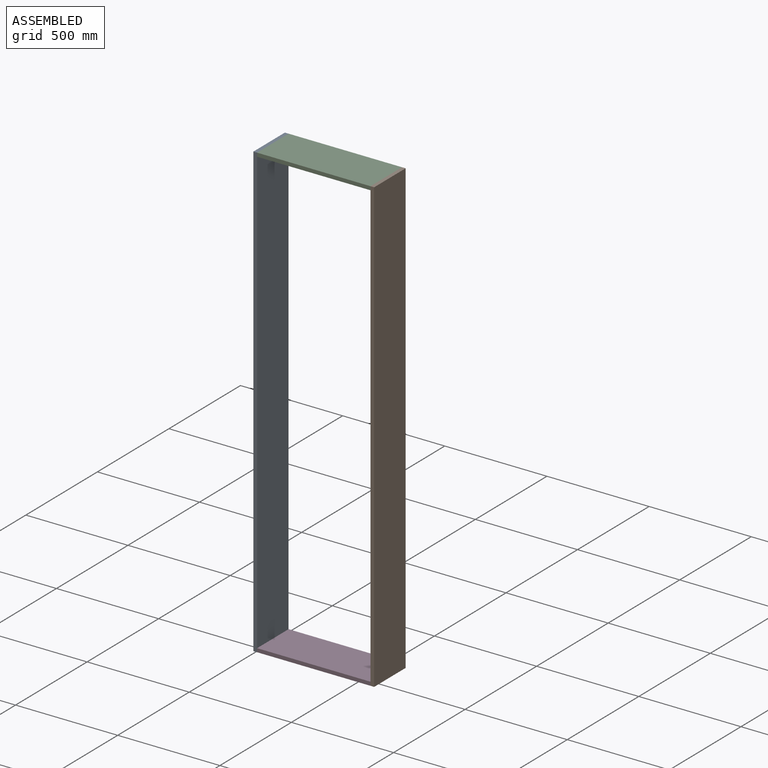
[diagram: assembled view]
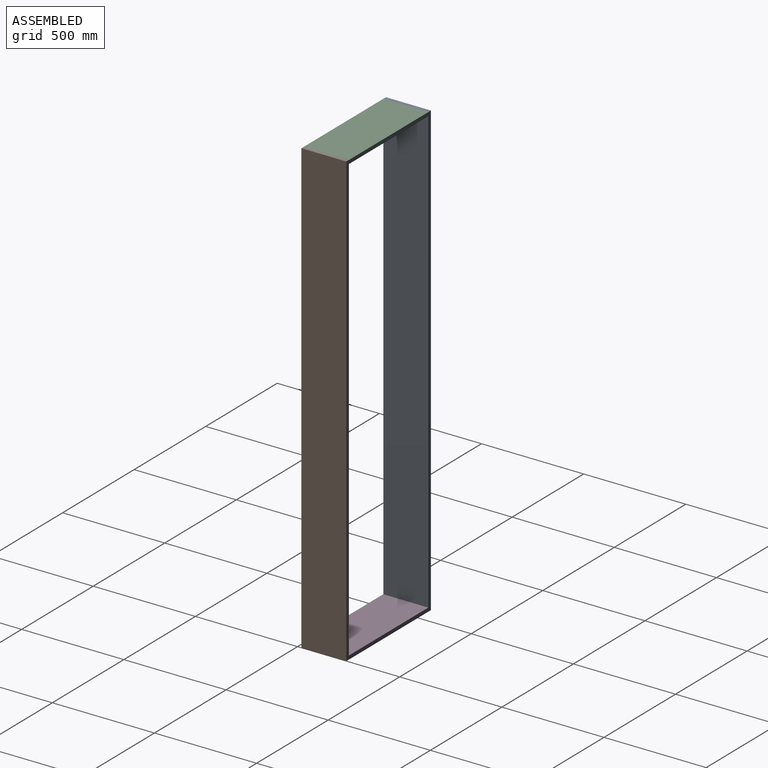
[diagram: assembled view, second angle]
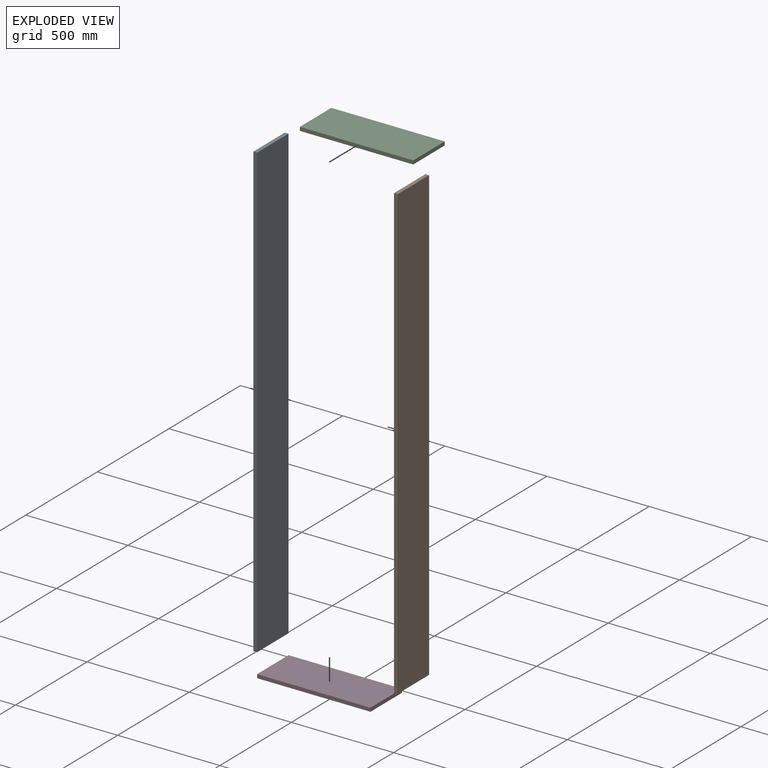
[diagram: exploded view]
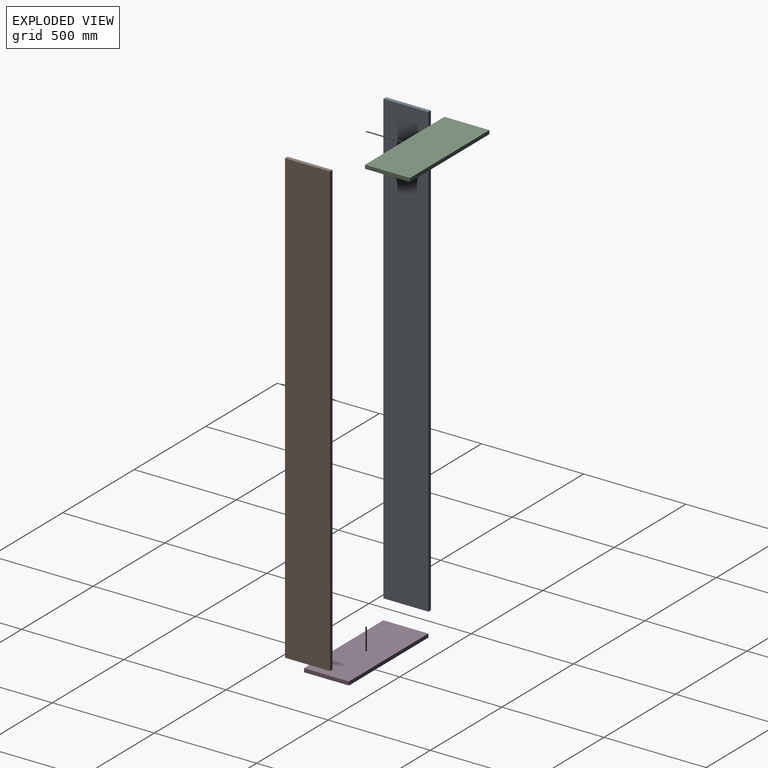
[diagram: exploded view, second angle]
ASSEMBLY  parts=4 mates=9
PART A: 6 faces, bbox 18x220x2210 mm
  f0: plane 2210x18mm, normal (0,-1,0), area 39780mm2, adj f1,f3,f4,f5
  f1: plane 220x18mm, normal (0,0,-1), area 3960mm2, adj f0,f2,f4,f5
  f2: plane 2210x18mm, normal (0,1,0), area 39780mm2, adj f1,f3,f4,f5
  f3: plane 220x18mm, normal (0,0,1), area 3960mm2, adj f0,f2,f4,f5
  f4: plane 2210x220mm, normal (1,0,0), area 486200mm2, adj f0,f1,f2,f3
  f5: plane 2210x220mm, normal (-1,0,0), area 486200mm2, adj f0,f1,f2,f3
PART B: same geometry as A
PART C: 6 faces, bbox 555x220x18 mm
  f0: plane 220x18mm, normal (-1,0,0), area 3960mm2, adj f1,f3,f4,f5
  f1: plane 555x18mm, normal (0,-1,0), area 9990mm2, adj f0,f2,f4,f5
  f2: plane 220x18mm, normal (1,0,0), area 3960mm2, adj f1,f3,f4,f5
  f3: plane 555x18mm, normal (0,1,0), area 9990mm2, adj f0,f2,f4,f5
  f4: plane 555x220mm, normal (0,0,1), area 122100mm2, adj f0,f1,f2,f3
  f5: plane 555x220mm, normal (0,0,-1), area 122100mm2, adj f0,f1,f2,f3
PART D: same geometry as C
PLACE A t=(-328.14,-1215.42,-661.68)mm
PLACE B t=(244.86,-1215.42,-661.68)mm
PLACE C t=(-1116.97,-1495.17,-679.68)mm
PLACE D t=(-1116.97,-1495.17,-2871.68)mm
MATE planar A.f0 <-> C.f1  axis (0,-1,0) through (-319.14,-796.78,-1766.68)mm
MATE planar C.f4 <-> A.f3  axis (0,0,1) through (-32.64,-796.78,-661.68)mm
MATE planar D.f5 <-> A.f1  axis (0,0,-1) through (-32.64,-686.78,-2871.68)mm
MATE planar B.f5 <-> C.f2  axis (-1,0,0) through (244.86,-686.78,-1766.68)mm
MATE planar D.f1 <-> A.f0  axis (0,-1,0) through (-32.64,-796.78,-2862.68)mm
MATE planar D.f0 <-> A.f4  axis (-1,0,0) through (-310.14,-686.78,-2862.68)mm
MATE planar C.f1 <-> B.f0  axis (0,-1,0) through (-32.64,-796.78,-670.68)mm
MATE planar B.f3 <-> C.f4  axis (0,0,1) through (253.86,-686.78,-661.68)mm
MATE planar C.f0 <-> A.f4  axis (-1,0,0) through (-310.14,-796.78,-679.68)mm
